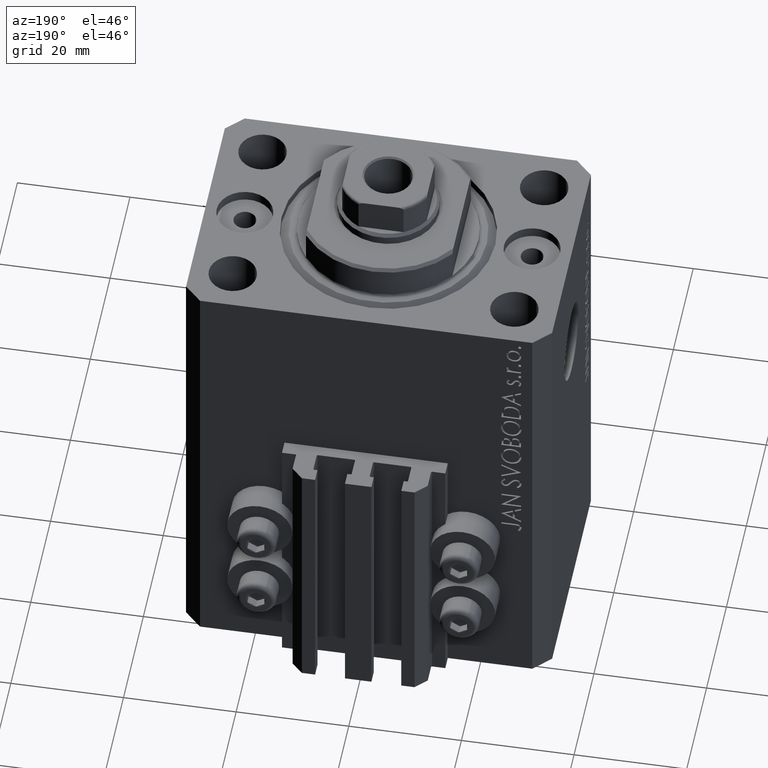
[diagram: clean part render]
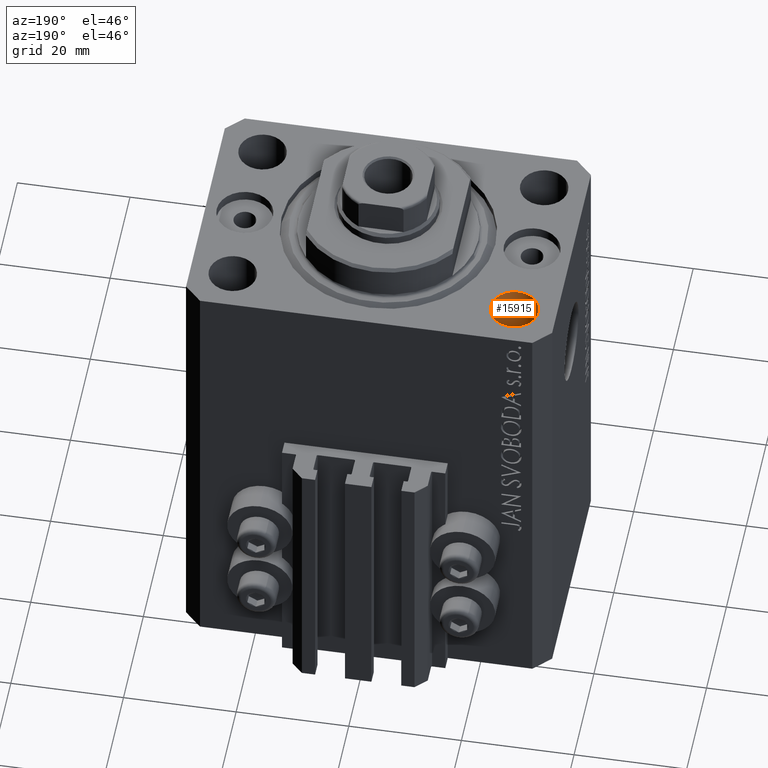
[diagram: same view with one face highlighted and labeled with its STEP entity id]
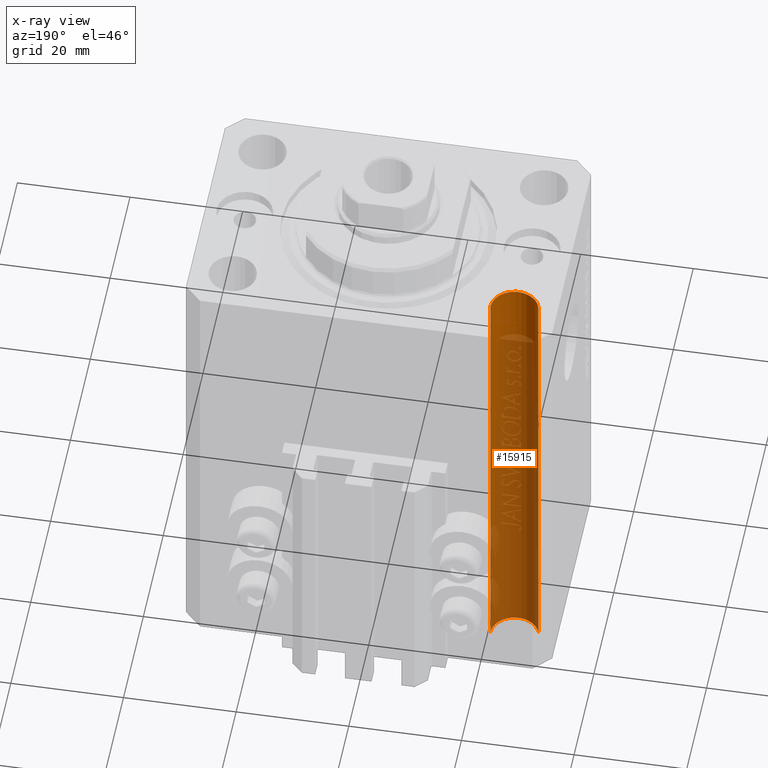
[diagram: x-ray of the same camera — body ghosted, the highlighted face saturated]
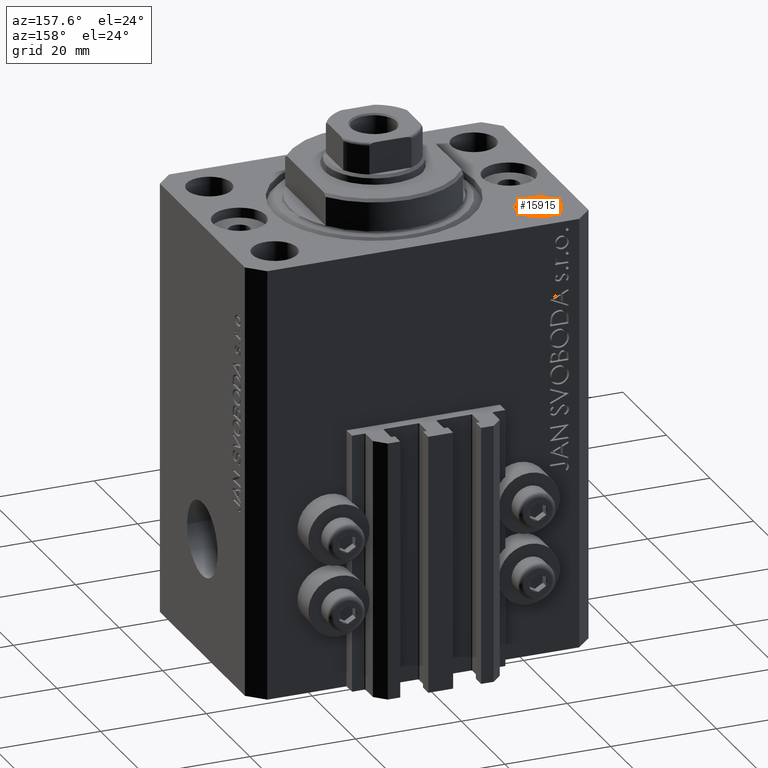
[diagram: same view with one face highlighted and labeled with its STEP entity id]
A machine part, auxiliary view. The second image highlights one B-rep face of the part: STEP entity #15915.
The next image is the same camera in x-ray: the body ghosted, the highlighted face saturated — about 76% of this face is hidden behind the body in this view.
A second angle (auxiliary view) of the same face is appended — the face is thin or edge-on in the first view.
In plain terms, the highlighted cylindrical surface (edge-blend (fillet) strip) has radius 4.25 mm, axis along (0, 0, 1).
Its self-contained STEP definition (entity closure, byte-faithful):
#551 = ORIENTED_EDGE ( 'NONE', *, *, #13339, .T. ) ;
#1912 = DIRECTION ( 'NONE',  ( -0.000000000000000000, -0.000000000000000000, 1.000000000000000000 ) ) ;
#4179 = AXIS2_PLACEMENT_3D ( 'NONE', #45513, #12829, #27364 ) ;
#4396 = CARTESIAN_POINT ( 'NONE',  ( -25.00000000000000000, 14.99999999999999645, 0.000000000000000000 ) ) ;
#7714 = AXIS2_PLACEMENT_3D ( 'NONE', #4396, #15362, #19883 ) ;
#9477 = DIRECTION ( 'NONE',  ( 1.000000000000000000, 0.000000000000000000, 0.000000000000000000 ) ) ;
#10714 = VERTEX_POINT ( 'NONE', #44492 ) ;
#10845 = VERTEX_POINT ( 'NONE', #42084 ) ;
#11069 = VECTOR ( 'NONE', #23350, 1000.000000000000000 ) ;
#12829 = DIRECTION ( 'NONE',  ( -0.000000000000000000, -0.000000000000000000, -1.000000000000000000 ) ) ;
#13068 = CIRCLE ( 'NONE', #7714, 4.250000000021375790 ) ;
#13339 = EDGE_CURVE ( 'NONE', #10845, #43211, #27806, .T. ) ;
#14456 = ORIENTED_EDGE ( 'NONE', *, *, #30574, .F. ) ;
#15123 = EDGE_CURVE ( 'NONE', #43211, #44591, #33829, .T. ) ;
#15362 = DIRECTION ( 'NONE',  ( 0.000000000000000000, 0.000000000000000000, 1.000000000000000000 ) ) ;
#15915 = ADVANCED_FACE ( 'NONE', ( #21188 ), #16660, .F. ) ;
#16660 = CYLINDRICAL_SURFACE ( 'NONE', #46935, 4.250000000021375790 ) ;
#17755 = CARTESIAN_POINT ( 'NONE',  ( -29.25000000002137668, 14.99999999999999645, -82.00000000000000000 ) ) ;
#17799 = EDGE_LOOP ( 'NONE', ( #551, #22776, #24554, #14456 ) ) ;
#19883 = DIRECTION ( 'NONE',  ( 1.000000000000000000, 0.000000000000000000, 0.000000000000000000 ) ) ;
#21188 = FACE_OUTER_BOUND ( 'NONE', #17799, .T. ) ;
#22157 = CARTESIAN_POINT ( 'NONE',  ( -29.25000000002137668, 14.99999999999999645, 0.000000000000000000 ) ) ;
#22776 = ORIENTED_EDGE ( 'NONE', *, *, #15123, .T. ) ;
#23350 = DIRECTION ( 'NONE',  ( -0.000000000000000000, -0.000000000000000000, 1.000000000000000000 ) ) ;
#24098 = LINE ( 'NONE', #45104, #46606 ) ;
#24512 = DIRECTION ( 'NONE',  ( -0.000000000000000000, -0.000000000000000000, 1.000000000000000000 ) ) ;
#24554 = ORIENTED_EDGE ( 'NONE', *, *, #27650, .T. ) ;
#27364 = DIRECTION ( 'NONE',  ( 1.000000000000000000, 0.000000000000000000, 0.000000000000000000 ) ) ;
#27385 = CARTESIAN_POINT ( 'NONE',  ( -25.00000000000000000, 14.99999999999999645, -94.02081528028548973 ) ) ;
#27650 = EDGE_CURVE ( 'NONE', #44591, #10714, #13068, .T. ) ;
#27806 = CIRCLE ( 'NONE', #4179, 4.250000000021375790 ) ;
#30574 = EDGE_CURVE ( 'NONE', #10845, #10714, #24098, .T. ) ;
#33829 = LINE ( 'NONE', #41714, #11069 ) ;
#41714 = CARTESIAN_POINT ( 'NONE',  ( -29.25000000002137668, 14.99999999999999645, -94.02081528028548973 ) ) ;
#42084 = CARTESIAN_POINT ( 'NONE',  ( -20.74999999997862687, 14.99999999999999645, -82.00000000000000000 ) ) ;
#43211 = VERTEX_POINT ( 'NONE', #17755 ) ;
#44492 = CARTESIAN_POINT ( 'NONE',  ( -20.74999999997862687, 14.99999999999999645, 0.000000000000000000 ) ) ;
#44591 = VERTEX_POINT ( 'NONE', #22157 ) ;
#45104 = CARTESIAN_POINT ( 'NONE',  ( -20.74999999997862687, 14.99999999999999645, -94.02081528028548973 ) ) ;
#45513 = CARTESIAN_POINT ( 'NONE',  ( -25.00000000000000000, 14.99999999999999645, -82.00000000000000000 ) ) ;
#46606 = VECTOR ( 'NONE', #1912, 1000.000000000000000 ) ;
#46935 = AXIS2_PLACEMENT_3D ( 'NONE', #27385, #24512, #9477 ) ;